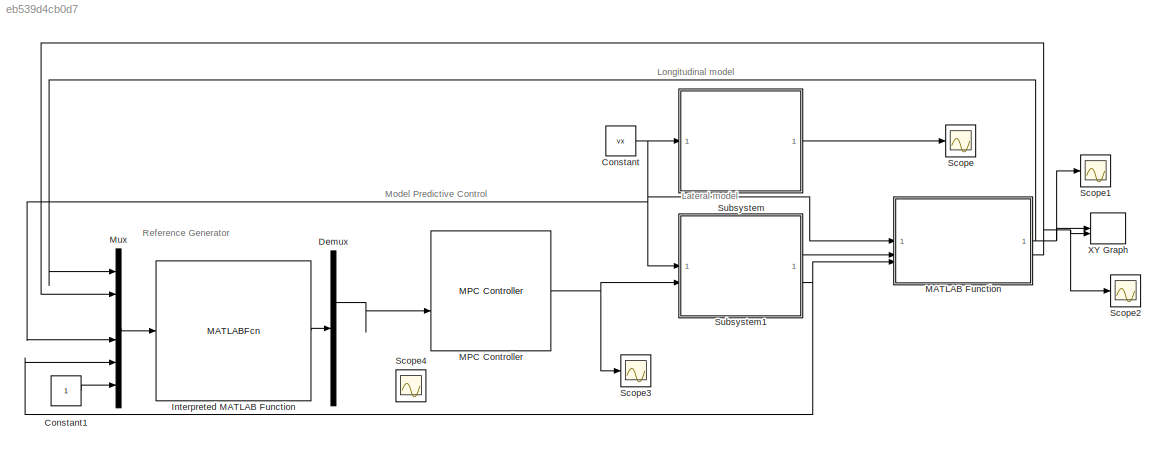
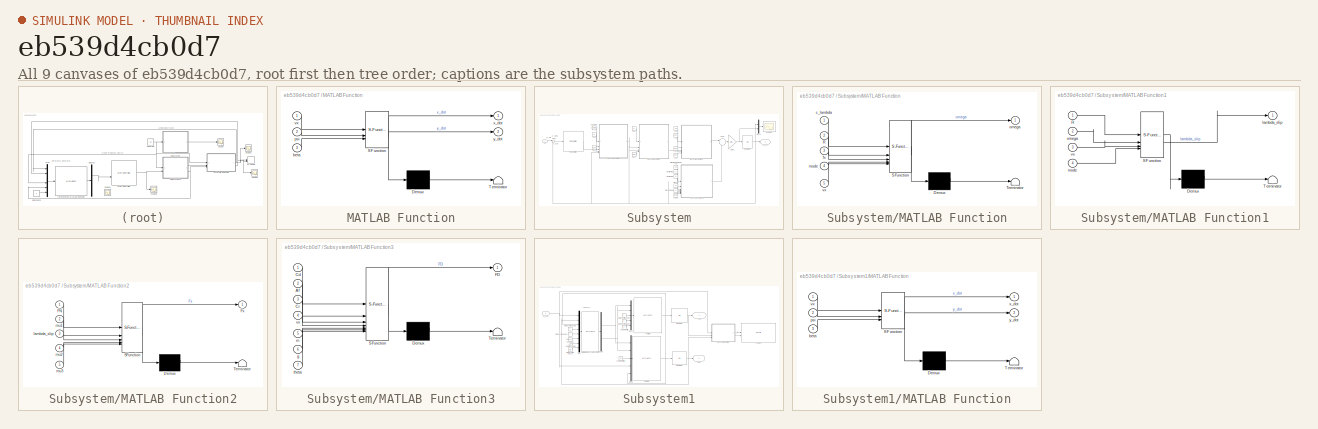
[diagram: thumbnail index - all 9 canvases of the model, root first then tree order]
MODEL slx_eb539d4cb0d7
KIND model
CONFIG AbsTol = auto
CONFIG EnableMultiTasking = off
CONFIG FixedStep = auto
CONFIG MaxStep = auto
CONFIG MinStep = auto
CONFIG RelTol = 1e-2
CONFIG SampleTimeConstraint = Unconstrained
CONFIG SolverName = VariableStepAuto
CONFIG StartTime = 0.0
CONFIG StopTime = 60
BLOCK [Constant] Constant
  Value = vx
BLOCK [Constant] Constant1
BLOCK [Demux] Demux
  Outputs = 2
BLOCK [MATLABFcn] Interpreted MATLAB Function
  MATLABFcn = purePursuitRefGen
BLOCK [SubSystem] MATLAB Function
  ErrorFcn = Stateflow.Translate.translate
  PermitHierarchicalResolution = ExplicitOnly
  SFBlockType = MATLAB Function
  TreatAsAtomicUnit = on
BLOCK [Demux] MATLAB Function/ Demux 
  Outputs = 1
BLOCK [S-Function] MATLAB Function/ SFunction 
  EnableBusSupport = on
  FunctionName = sf_sfun
  PortCounts = [3 3]
  SFcnIsStateOwnerBlock = off
  SFunctionDeploymentMode = off
  Tag = Stateflow S-Function 8
BLOCK [Terminator] MATLAB Function/ Terminator 
BLOCK [Inport] MATLAB Function/beta
  Port = 3
BLOCK [Inport] MATLAB Function/psi
  Port = 2
BLOCK [Inport] MATLAB Function/vx
BLOCK [Outport] MATLAB Function/x_dot
BLOCK [Outport] MATLAB Function/y_dot
  Port = 2
BLOCK [Reference] MPC Controller  REF=mpclib/MPC Controller  (lib defined in mdl_ae329e0e0455)
  SCDEnableBlockLinearizationSpecification = on
  SourceBlock = mpclib/MPC Controller
  SourceType = MPC
BLOCK [Mux] Mux
  DisplayOption = bar
  Inputs = 6
BLOCK [Scope] Scope
  Floating = off
  NumInputPorts = 1
  ScopeSpecificationString = Simulink.scopes.TimeScopeBlockCfg('CurrentConfiguration', extmgr.ConfigurationSet(extmgr.Configuration('Core','General UI',true),extmgr.Configuration('Core','Source UI',true),extmgr.Configuration('Sources','WiredSimulink',true,'DataLoggingVariableName','ScopeData1'),extmgr.Configuration('Visuals','Time Domain',true),extmgr.Configuration('Tools','Plot Navigation',true),extmgr.Configuration('Tools',...<+40ch>
BLOCK [Scope] Scope1
  Floating = off
  NumInputPorts = 1
  ScopeSpecificationString = Simulink.scopes.TimeScopeBlockCfg('CurrentConfiguration', extmgr.ConfigurationSet(extmgr.Configuration('Core','General UI',true),extmgr.Configuration('Core','Source UI',true),extmgr.Configuration('Sources','WiredSimulink',true,'DataLoggingVariableName','ScopeData1'),extmgr.Configuration('Visuals','Time Domain',true,'SerializedDisplays',{struct('MinYLimReal','7.71216','MaxYLimReal','10.08943','YLab...<+1469ch>
BLOCK [Scope] Scope2
  Floating = off
  NumInputPorts = 1
  ScopeSpecificationString = Simulink.scopes.TimeScopeBlockCfg('CurrentConfiguration', extmgr.ConfigurationSet(extmgr.Configuration('Core','General UI',true),extmgr.Configuration('Core','Source UI',true),extmgr.Configuration('Sources','WiredSimulink',true,'DataLoggingVariableName','ScopeData2'),extmgr.Configuration('Visuals','Time Domain',true,'SerializedDisplays',{struct('MinYLimReal','-7.12834','MaxYLimReal','0.79204','YLab...<+1469ch>
BLOCK [Scope] Scope3
  Floating = off
  NumInputPorts = 1
  ScopeSpecificationString = Simulink.scopes.TimeScopeBlockCfg('CurrentConfiguration', extmgr.ConfigurationSet(extmgr.Configuration('Core','General UI',true),extmgr.Configuration('Core','Source UI',true),extmgr.Configuration('Sources','WiredSimulink',true,'DataLoggingVariableName','ScopeData3'),extmgr.Configuration('Visuals','Time Domain',true,'SerializedDisplays',{struct('MinYLimReal','-1.04053','MaxYLimReal','9.38701','YLab...<+1462ch>
BLOCK [Scope] Scope4
  Floating = off
  NumInputPorts = 1
  ScopeSpecificationString = Simulink.scopes.TimeScopeBlockCfg('CurrentConfiguration', extmgr.ConfigurationSet(extmgr.Configuration('Core','General UI',true),extmgr.Configuration('Core','Source UI',true),extmgr.Configuration('Sources','WiredSimulink',true,'DataLoggingVariableName','ScopeData4'),extmgr.Configuration('Visuals','Time Domain',true,'SerializedDisplays',{struct('MinYLimReal','-0.23306','MaxYLimReal','2.21124','YLab...<+1521ch>
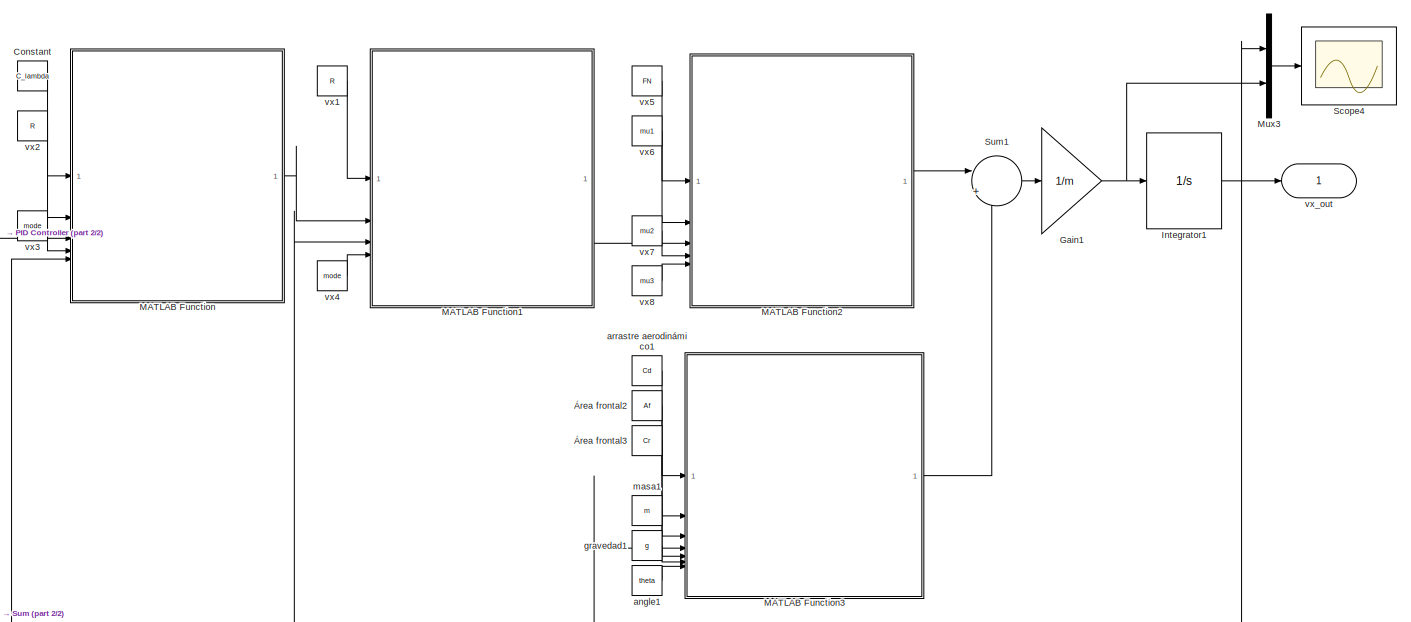
[diagram: Subsystem - part 1/2, most of the canvas]
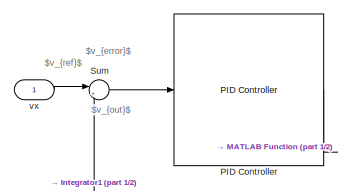
[diagram: Subsystem - part 2/2, top left region]
BLOCK [SubSystem] Subsystem
BLOCK [Constant] Subsystem/Constant
  Value = C_lambda
BLOCK [Gain] Subsystem/Gain1
  Gain = 1/m
BLOCK [Integrator] Subsystem/Integrator1
  ZeroCross = off
BLOCK [SubSystem] Subsystem/MATLAB Function
  ErrorFcn = Stateflow.Translate.translate
  PermitHierarchicalResolution = ExplicitOnly
  SFBlockType = MATLAB Function
  TreatAsAtomicUnit = on
BLOCK [Demux] Subsystem/MATLAB Function/ Demux 
  Outputs = 1
BLOCK [S-Function] Subsystem/MATLAB Function/ SFunction 
  EnableBusSupport = on
  FunctionName = sf_sfun
  PortCounts = [5 2]
  SFcnIsStateOwnerBlock = off
  SFunctionDeploymentMode = off
  Tag = Stateflow S-Function 2
BLOCK [Terminator] Subsystem/MATLAB Function/ Terminator 
BLOCK [Inport] Subsystem/MATLAB Function/R
  Port = 2
BLOCK [Inport] Subsystem/MATLAB Function/c_lambda
BLOCK [Inport] Subsystem/MATLAB Function/fx
  Port = 3
BLOCK [Inport] Subsystem/MATLAB Function/mode
  Port = 4
BLOCK [Outport] Subsystem/MATLAB Function/omega
BLOCK [Inport] Subsystem/MATLAB Function/vx
  Port = 5
BLOCK [SubSystem] Subsystem/MATLAB Function1
  ErrorFcn = Stateflow.Translate.translate
  PermitHierarchicalResolution = ExplicitOnly
  SFBlockType = MATLAB Function
  TreatAsAtomicUnit = on
BLOCK [Demux] Subsystem/MATLAB Function1/ Demux 
  Outputs = 1
BLOCK [S-Function] Subsystem/MATLAB Function1/ SFunction 
  EnableBusSupport = on
  FunctionName = sf_sfun
  PortCounts = [4 2]
  SFcnIsStateOwnerBlock = off
  SFunctionDeploymentMode = off
  Tag = Stateflow S-Function 1
BLOCK [Terminator] Subsystem/MATLAB Function1/ Terminator 
BLOCK [Inport] Subsystem/MATLAB Function1/R
BLOCK [Outport] Subsystem/MATLAB Function1/lambda_slip
BLOCK [Inport] Subsystem/MATLAB Function1/mode
  Port = 4
BLOCK [Inport] Subsystem/MATLAB Function1/omega
  Port = 2
BLOCK [Inport] Subsystem/MATLAB Function1/vx
  Port = 3
BLOCK [SubSystem] Subsystem/MATLAB Function2
  ErrorFcn = Stateflow.Translate.translate
  PermitHierarchicalResolution = ExplicitOnly
  SFBlockType = MATLAB Function
  TreatAsAtomicUnit = on
BLOCK [Demux] Subsystem/MATLAB Function2/ Demux 
  Outputs = 1
BLOCK [S-Function] Subsystem/MATLAB Function2/ SFunction 
  EnableBusSupport = on
  FunctionName = sf_sfun
  PortCounts = [5 2]
  SFcnIsStateOwnerBlock = off
  SFunctionDeploymentMode = off
  Tag = Stateflow S-Function 3
BLOCK [Terminator] Subsystem/MATLAB Function2/ Terminator 
BLOCK [Inport] Subsystem/MATLAB Function2/FN
BLOCK [Outport] Subsystem/MATLAB Function2/Fx
BLOCK [Inport] Subsystem/MATLAB Function2/lambda_slip
  Port = 3
BLOCK [Inport] Subsystem/MATLAB Function2/mu1
  Port = 2
BLOCK [Inport] Subsystem/MATLAB Function2/mu2
  Port = 4
BLOCK [Inport] Subsystem/MATLAB Function2/mu3
  Port = 5
BLOCK [SubSystem] Subsystem/MATLAB Function3
  ErrorFcn = Stateflow.Translate.translate
  PermitHierarchicalResolution = ExplicitOnly
  SFBlockType = MATLAB Function
  TreatAsAtomicUnit = on
BLOCK [Demux] Subsystem/MATLAB Function3/ Demux 
  Outputs = 1
BLOCK [S-Function] Subsystem/MATLAB Function3/ SFunction 
  EnableBusSupport = on
  FunctionName = sf_sfun
  PortCounts = [7 2]
  SFcnIsStateOwnerBlock = off
  SFunctionDeploymentMode = off
  Tag = Stateflow S-Function 4
BLOCK [Terminator] Subsystem/MATLAB Function3/ Terminator 
BLOCK [Inport] Subsystem/MATLAB Function3/Af
  Port = 2
BLOCK [Inport] Subsystem/MATLAB Function3/Cd
BLOCK [Inport] Subsystem/MATLAB Function3/Cr
  Port = 3
BLOCK [Outport] Subsystem/MATLAB Function3/FD
BLOCK [Inport] Subsystem/MATLAB Function3/g
  Port = 6
BLOCK [Inport] Subsystem/MATLAB Function3/m
  Port = 5
BLOCK [Inport] Subsystem/MATLAB Function3/theta
  Port = 7
BLOCK [Inport] Subsystem/MATLAB Function3/vx
  Port = 4
BLOCK [Mux] Subsystem/Mux3
  DisplayOption = bar
  Inputs = 2
BLOCK [Reference] Subsystem/PID Controller  REF=slpidlib/PID Controller
  LibrarySourceBlock = simulink/Continuous/PID Controller
  SourceBlock = slpidlib/PID Controller
  SourceType = PID 1dof
BLOCK [Scope] Subsystem/Scope4
  Floating = off
  NumInputPorts = 1
  ScopeSpecificationString = Simulink.scopes.TimeScopeBlockCfg('CurrentConfiguration', extmgr.ConfigurationSet(extmgr.Configuration('Core','General UI',true),extmgr.Configuration('Core','Source UI',true),extmgr.Configuration('Sources','WiredSimulink',true,'DataLoggingVariableName','ScopeData2'),extmgr.Configuration('Visuals','Time Domain',true,'SerializedDisplays',{struct('MinYLimReal','-1.34144','MaxYLimReal','11.27789','YLa...<+1520ch>
BLOCK [Sum] Subsystem/Sum
  Inputs = |+-
BLOCK [Sum] Subsystem/Sum1
  Inputs = |+-
BLOCK [Constant] Subsystem/angle1
  Value = theta
  VectorParams1D = off
BLOCK [Constant] Subsystem/arrastre aerodinámico1
  Value = Cd
  VectorParams1D = off
BLOCK [Constant] Subsystem/gravedad1
  Value = g
  VectorParams1D = off
BLOCK [Constant] Subsystem/masa1
  Value = m
  VectorParams1D = off
BLOCK [Inport] Subsystem/vx
BLOCK [Constant] Subsystem/vx1
  SampleTime = R
  Value = R
  VectorParams1D = off
BLOCK [Constant] Subsystem/vx2
  SampleTime = R
  Value = R
  VectorParams1D = off
BLOCK [Constant] Subsystem/vx3
  SampleTime = mode
  Value = mode
  VectorParams1D = off
BLOCK [Constant] Subsystem/vx4
  SampleTime = mode
  Value = mode
  VectorParams1D = off
BLOCK [Constant] Subsystem/vx5
  SampleTime = R
  Value = FN
  VectorParams1D = off
BLOCK [Constant] Subsystem/vx6
  SampleTime = R
  Value = mu1
  VectorParams1D = off
BLOCK [Constant] Subsystem/vx7
  SampleTime = R
  Value = mu2
  VectorParams1D = off
BLOCK [Constant] Subsystem/vx8
  SampleTime = R
  Value = mu3
  VectorParams1D = off
BLOCK [Outport] Subsystem/vx_out
BLOCK [Constant] Subsystem/Área frontal2
  Value = Af
  VectorParams1D = off
BLOCK [Constant] Subsystem/Área frontal3
  Value = Cr
  VectorParams1D = off
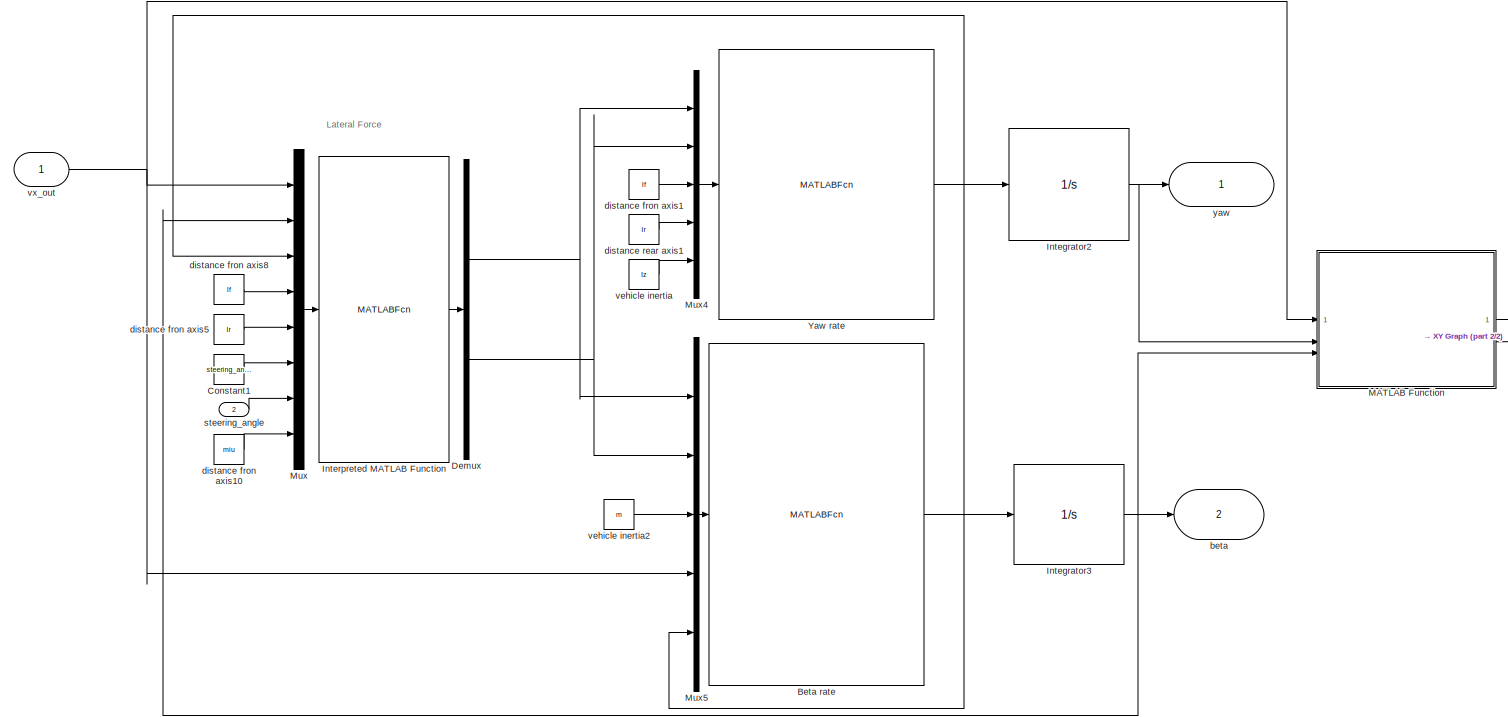
[diagram: Subsystem1 - part 1/2, most of the canvas]
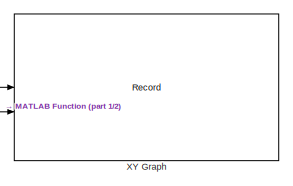
[diagram: Subsystem1 - part 2/2, middle right region]
BLOCK [SubSystem] Subsystem1
BLOCK [MATLABFcn] Subsystem1/Beta rate
  MATLABFcn = computeBetaRate
  NameLocation = top
BLOCK [Constant] Subsystem1/Constant1
  Value = steering_angle
BLOCK [Demux] Subsystem1/Demux
  Outputs = 2
BLOCK [Integrator] Subsystem1/Integrator2
BLOCK [Integrator] Subsystem1/Integrator3
BLOCK [MATLABFcn] Subsystem1/Interpreted MATLAB Function
  MATLABFcn = lateral_force
  OutputDimensions = 2
BLOCK [SubSystem] Subsystem1/MATLAB Function
  ErrorFcn = Stateflow.Translate.translate
  PermitHierarchicalResolution = ExplicitOnly
  SFBlockType = MATLAB Function
  TreatAsAtomicUnit = on
BLOCK [Demux] Subsystem1/MATLAB Function/ Demux 
  Outputs = 1
BLOCK [S-Function] Subsystem1/MATLAB Function/ SFunction 
  EnableBusSupport = on
  FunctionName = sf_sfun
  PortCounts = [3 3]
  SFcnIsStateOwnerBlock = off
  SFunctionDeploymentMode = off
  Tag = Stateflow S-Function 6
BLOCK [Terminator] Subsystem1/MATLAB Function/ Terminator 
BLOCK [Inport] Subsystem1/MATLAB Function/beta
  Port = 3
BLOCK [Inport] Subsystem1/MATLAB Function/psi
  Port = 2
BLOCK [Inport] Subsystem1/MATLAB Function/vx
BLOCK [Outport] Subsystem1/MATLAB Function/x_dot
BLOCK [Outport] Subsystem1/MATLAB Function/y_dot
  Port = 2
BLOCK [Mux] Subsystem1/Mux
  DisplayOption = bar
  Inputs = 8
BLOCK [Mux] Subsystem1/Mux4
  DisplayOption = bar
  Inputs = 5
BLOCK [Mux] Subsystem1/Mux5
  DisplayOption = bar
  Inputs = 5
BLOCK [Record] Subsystem1/XY Graph
  CompatibilityTag = XY
  FileSettingsInternal = {"entries":[{"content":{"excelSettings":{"content":{},"type":"Streamout.ExcelSettings"}},"type":"Streamout.FileSettingStorage","uuid":""}],"packageUris":["http:\/\/schema.mathworks.com\/mf0\/streamout_blocks\/R2020a"],"version":"1.0"}
  Layout = [1 1]
  SignalsInternal = {"entries":[{"content":{"signals":[{"content":{"blockPath":[],"dimensions":[1],"domain":"","lineColor":"#a2142f","plots":[ 1 ],"port":1,"signalID":1,"signalName":"MATLAB Function:1"},"type":"RecordBlkView.Signal","uuid":""},{"content":{"blockPath":[],"dimensions":[1],"domain":"","lineColor":"#139fff","plots":[ 1 ],"port":2,"signalID":2,"signalName":"MATLAB Function:2"},"type":"RecordBlkView.Signal...<+158ch>
  VisualizationBindings = {"xyplotplugin":{"info":[{"series":[{"bindingParametersList":[{"parameter":"X-Axis","signalID":1,"signalName":"MATLAB Function:1"},{"parameter":"Y-Axis","signalID":2,"signalName":"MATLAB Function:2"}],"seriesID":0}],"subplotID":1}]}}
BLOCK [MATLABFcn] Subsystem1/Yaw rate
  MATLABFcn = computeYawRate
  NameLocation = top
BLOCK [Outport] Subsystem1/beta
  Port = 2
BLOCK [Constant] Subsystem1/distance fron axis1
  Value = lf
BLOCK [Constant] Subsystem1/distance fron axis10
  Value = miu
BLOCK [Constant] Subsystem1/distance fron axis5
  Value = lr
BLOCK [Constant] Subsystem1/distance fron axis8
  Value = lf
BLOCK [Constant] Subsystem1/distance rear axis1
  Value = lr
BLOCK [Inport] Subsystem1/steering_angle
  Port = 2
BLOCK [Constant] Subsystem1/vehicle inertia
  Value = Iz
BLOCK [Constant] Subsystem1/vehicle inertia2
  Value = m
BLOCK [Inport] Subsystem1/vx_out
BLOCK [Outport] Subsystem1/yaw
BLOCK [Record] XY Graph
  CompatibilityTag = XY
  FileSettingsInternal = {"entries":[{"content":{"excelSettings":{"content":{},"type":"Streamout.ExcelSettings"}},"type":"Streamout.FileSettingStorage","uuid":""}],"packageUris":["http:\/\/schema.mathworks.com\/mf0\/streamout_blocks\/R2020a"],"version":"1.0"}
  Layout = [1 1]
  SignalsInternal = {"entries":[{"content":{"signals":[{"content":{"blockPath":[],"dimensions":[1],"domain":"","lineColor":"#a2142f","plots":[ 1 ],"port":1,"signalID":1,"signalName":"MATLAB Function:1"},"type":"RecordBlkView.Signal","uuid":""},{"content":{"blockPath":[],"dimensions":[1],"domain":"","lineColor":"#139fff","plots":[ 1 ],"port":2,"signalID":2,"signalName":"MATLAB Function:2"},"type":"RecordBlkView.Signal...<+158ch>
  VisualizationBindings = {"xyplotplugin":{"info":[{"series":[{"bindingParametersList":[{"parameter":"X-Axis","signalID":1,"signalName":"MATLAB Function:1"},{"parameter":"Y-Axis","signalID":2,"signalName":"MATLAB Function:2"}],"seriesID":0}],"subplotID":1}]}}
ANNOTATION (root): Lateral model
ANNOTATION (root): Longitudinal model
ANNOTATION (root): Model Predictive Control
ANNOTATION (root): Reference Generator
ANNOTATION Subsystem: $v_{out}$
ANNOTATION Subsystem: $v_{ref}$
ANNOTATION Subsystem: $v_{error}$
ANNOTATION Subsystem1: Lateral Force
LINE Constant1:1 -> Mux:6
NET Constant:1 -> MATLAB Function:1, Mux:4, Subsystem1:1, Subsystem:1
LINE Demux:1 -> MPC Controller:2
LINE Interpreted MATLAB Function:1 -> Demux:1
NET MATLAB Function:1 -> Mux:1, Scope1:1, XY Graph:1
NET MATLAB Function:2 -> Mux:2, Scope2:1, XY Graph:2
NET MPC Controller:1 -> Scope3:1, Subsystem1:2
LINE Mux:1 -> Interpreted MATLAB Function:1
LINE Subsystem/Constant:1 -> Subsystem/MATLAB Function:1
NET Subsystem/Gain1:1 -> Subsystem/Integrator1:1, Subsystem/Mux3:2
NET Subsystem/Integrator1:1 -> Subsystem/MATLAB Function1:3, Subsystem/MATLAB Function3:4, Subsystem/MATLAB Function:5, Subsystem/Mux3:1, Subsystem/Sum:2, Subsystem/vx_out:1
LINE Subsystem/MATLAB Function1:1 -> Subsystem/MATLAB Function2:3
LINE Subsystem/MATLAB Function2:1 -> Subsystem/Sum1:1
LINE Subsystem/MATLAB Function3:1 -> Subsystem/Sum1:2
LINE Subsystem/MATLAB Function:1 -> Subsystem/MATLAB Function1:2
LINE Subsystem/Mux3:1 -> Subsystem/Scope4:1
LINE Subsystem/PID Controller:1 -> Subsystem/MATLAB Function:3
LINE Subsystem/Sum1:1 -> Subsystem/Gain1:1
LINE Subsystem/Sum:1 -> Subsystem/PID Controller:1
LINE Subsystem/angle1:1 -> Subsystem/MATLAB Function3:7
LINE Subsystem/arrastre aerodinámico1:1 -> Subsystem/MATLAB Function3:1
LINE Subsystem/gravedad1:1 -> Subsystem/MATLAB Function3:6
LINE Subsystem/masa1:1 -> Subsystem/MATLAB Function3:5
LINE Subsystem/vx1:1 -> Subsystem/MATLAB Function1:1
LINE Subsystem/vx2:1 -> Subsystem/MATLAB Function:2
LINE Subsystem/vx3:1 -> Subsystem/MATLAB Function:4
LINE Subsystem/vx4:1 -> Subsystem/MATLAB Function1:4
LINE Subsystem/vx5:1 -> Subsystem/MATLAB Function2:1
LINE Subsystem/vx6:1 -> Subsystem/MATLAB Function2:2
LINE Subsystem/vx7:1 -> Subsystem/MATLAB Function2:4
LINE Subsystem/vx8:1 -> Subsystem/MATLAB Function2:5
LINE Subsystem/vx:1 -> Subsystem/Sum:1
LINE Subsystem/Área frontal2:1 -> Subsystem/MATLAB Function3:2
LINE Subsystem/Área frontal3:1 -> Subsystem/MATLAB Function3:3
LINE Subsystem1/Beta rate:1 -> Subsystem1/Integrator3:1
LINE Subsystem1/Constant1:1 -> Subsystem1/Mux:6
NET Subsystem1/Demux:1 -> Subsystem1/Mux4:1, Subsystem1/Mux5:1
NET Subsystem1/Demux:2 -> Subsystem1/Mux4:2, Subsystem1/Mux5:2
NET Subsystem1/Integrator2:1 -> Subsystem1/MATLAB Function:2, Subsystem1/yaw:1
NET Subsystem1/Integrator3:1 -> Subsystem1/MATLAB Function:3, Subsystem1/Mux:2, Subsystem1/beta:1
LINE Subsystem1/Interpreted MATLAB Function:1 -> Subsystem1/Demux:1
LINE Subsystem1/MATLAB Function:1 -> Subsystem1/XY Graph:1
LINE Subsystem1/MATLAB Function:2 -> Subsystem1/XY Graph:2
LINE Subsystem1/Mux4:1 -> Subsystem1/Yaw rate:1
LINE Subsystem1/Mux5:1 -> Subsystem1/Beta rate:1
LINE Subsystem1/Mux:1 -> Subsystem1/Interpreted MATLAB Function:1
NET Subsystem1/Yaw rate:1 -> Subsystem1/Integrator2:1, Subsystem1/Mux5:5, Subsystem1/Mux:3
LINE Subsystem1/distance fron axis10:1 -> Subsystem1/Mux:8
LINE Subsystem1/distance fron axis1:1 -> Subsystem1/Mux4:3
LINE Subsystem1/distance fron axis5:1 -> Subsystem1/Mux:5
LINE Subsystem1/distance fron axis8:1 -> Subsystem1/Mux:4
LINE Subsystem1/distance rear axis1:1 -> Subsystem1/Mux4:4
LINE Subsystem1/steering_angle:1 -> Subsystem1/Mux:7
LINE Subsystem1/vehicle inertia2:1 -> Subsystem1/Mux5:3
LINE Subsystem1/vehicle inertia:1 -> Subsystem1/Mux4:5
NET Subsystem1/vx_out:1 -> Subsystem1/MATLAB Function:1, Subsystem1/Mux5:4, Subsystem1/Mux:1
LINE Subsystem1:1 -> MATLAB Function:2
NET Subsystem1:2 -> MATLAB Function:3, Mux:5
LINE Subsystem:1 -> Scope:1
note: NET lines group one-source signal fan-out (src -> all destinations, sorted); 1:1 wires keep LINE
CHART Subsystem/MATLAB Function1 states=1 transitions=1
  STATE_LABEL 'eML_blk_kernel()'
  STATE_LABEL "SCRIPT:\nfunction lambda_slip = slip_ratio(R,omega,vx,mode)\n    epsilon = 1e-6; % Small threshold for near-zero values\n\n    if abs(vx) < epsilon\n        vx = sign(vx) * epsilon;\n    end\n    if abs(omega) < epsilon\n        omega = sign(omega) * epsilon;\n    end\n\n    if mode == 1  % 'braking'\n        if abs(R * omega - vx) < epsilon || abs(vx) < epsilon\n            lambda_slip = 0;\n        else\n     ...<+323ch>"
CHART Subsystem/MATLAB Function states=1 transitions=1
  STATE_LABEL 'eML_blk_kernel()'
  STATE_LABEL 'SCRIPT:\nfunction omega= convertlw(c_lambda, R,fx,  mode,vx)\n    % Threshold for near-zero values\n    epsilon = 1e-6;\n    if abs(fx) < epsilon\n        fx = sign(fx) * epsilon;\n    end\n    if abs(R) < epsilon\n        R = sign(R) * epsilon;\n    end\n\n    % Compute omega based on mode\n    if mode == 1 % braking\n        omega = vx * (((fx/c_lambda) +1)/R);\n    elseif mode == 2 % acceleration\n        ome...<+91ch>'
CHART Subsystem/MATLAB Function2 states=1 transitions=1
  STATE_LABEL 'eML_blk_kernel()'
  STATE_LABEL 'SCRIPT:\nfunction Fx = nonlinear_force(FN,mu1,lambda_slip,mu2,mu3)\n    mu_lambda = sign(lambda_slip) * (mu1 * (1 - exp(-abs(lambda_slip) * mu2)) - abs(lambda_slip) * mu3);\n    Fx = mu_lambda * FN;\nend\n'
CHART Subsystem/MATLAB Function3 states=1 transitions=1
  STATE_LABEL 'eML_blk_kernel()'
  STATE_LABEL 'SCRIPT:\nfunction FD = drag_force(Cd,Af,Cr,vx,m,g,theta)\n    rho = 1.225; \n    drag_term = 0.5 * rho * Cd * Af * vx^2;\n    if abs(vx) < 1e-3\n        drag_term = 0;  \n    end\n\n\n    rolling_resistance = Cr * m * g * cos(theta);\n\n \n    FD = drag_term + rolling_resistance;\n\n\n    if ~isfinite(FD)\n        FD = 0; \n    end\nend'
CHART Subsystem1/MATLAB Function states=1 transitions=1
  STATE_LABEL 'eML_blk_kernel()'
  STATE_LABEL 'SCRIPT:\nfunction [x_dot,y_dot] = computeVehiclePosition(vx,psi,beta) \n    vy = vx * tan(beta);\n    x_dot = vx * cos(psi) - vy * sin(psi); \n    y_dot = vx * sin(psi) + vy * cos(psi); \n\n   \nend'
CHART MATLAB Function states=1 transitions=1
  STATE_LABEL 'eML_blk_kernel()'
  STATE_LABEL 'SCRIPT:\nfunction [x_dot,y_dot] = computeVehiclePosition(vx,psi,beta) \n    vy = vx * tan(beta);\n    x_dot = vx * cos(psi) - vy * sin(psi); \n    y_dot = vx * sin(psi) + vy * cos(psi); \n\n   \nend'
CHART  states=0 transitions=0
CHART  states=0 transitions=0
CHART  states=0 transitions=0
CHART  states=0 transitions=0
CHART  states=0 transitions=0
CHART  states=0 transitions=0
